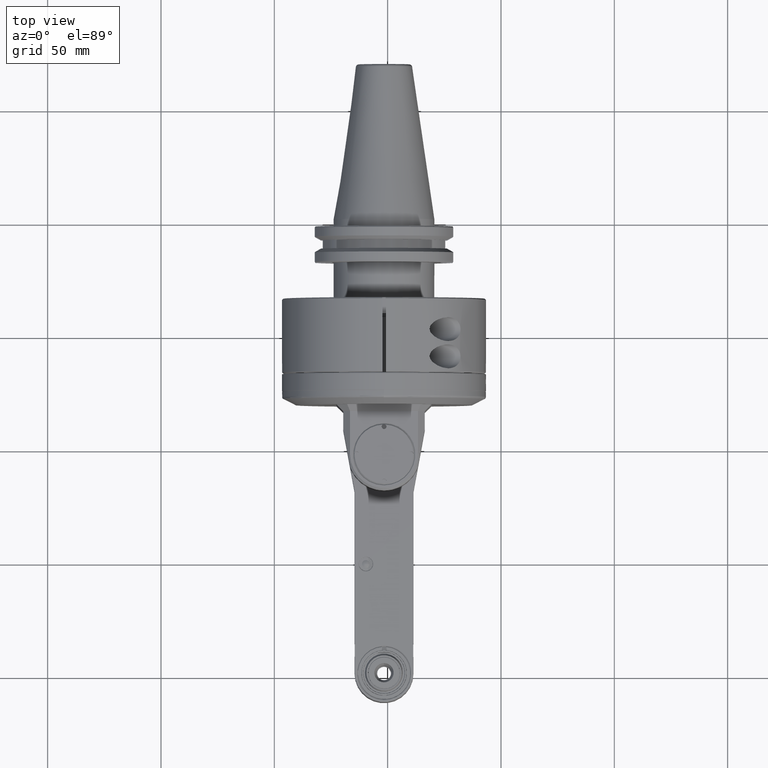
[diagram: clean part render]
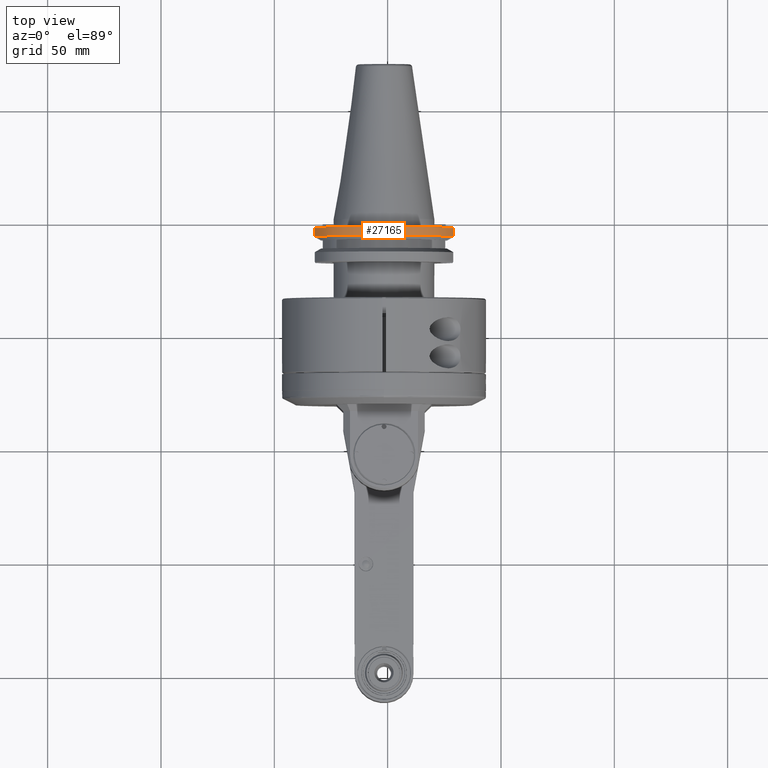
[diagram: same view with one face highlighted and labeled with its STEP entity id]
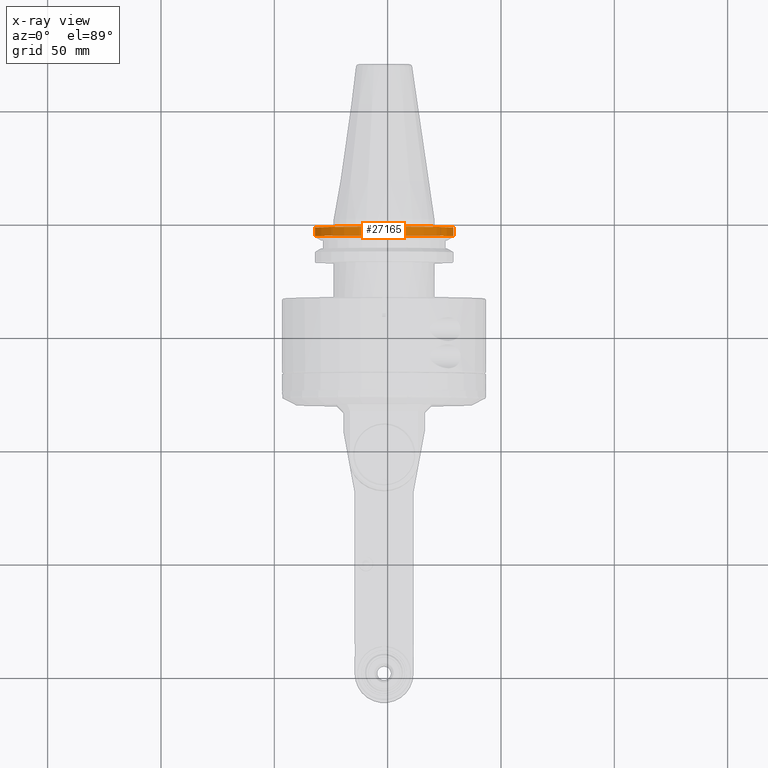
[diagram: x-ray of the same camera — body ghosted, the highlighted face saturated]
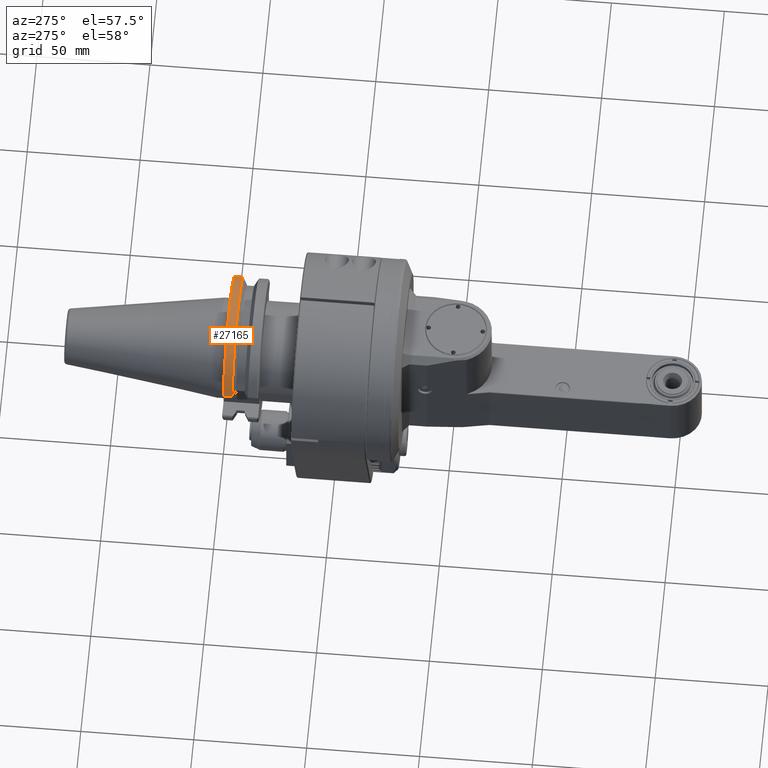
[diagram: same view with one face highlighted and labeled with its STEP entity id]
A machine part, top view. The second image highlights one B-rep face of the part: STEP entity #27165.
The next image is the same camera in x-ray: the body ghosted, the highlighted face saturated — about 0% of this face is hidden behind the body in this view.
A second angle (auxiliary view) of the same face is appended — the face is thin or edge-on in the first view.
In plain terms, the highlighted cylindrical surface (partial cylindrical patch) has radius 31.75 mm, axis along (0, 1, 0).
Its self-contained STEP definition (entity closure, byte-faithful):
#3970=LINE('',#50026,#6349);
#3972=LINE('',#50049,#6351);
#6349=VECTOR('',#37546,0.152557782090866);
#6351=VECTOR('',#37560,0.152557782090866);
#7469=CIRCLE('',#29887,1.25);
#7470=CIRCLE('',#29889,1.25);
#8998=FACE_OUTER_BOUND('',#10707,.T.);
#10707=EDGE_LOOP('',(#25179,#25180,#25181,#25182));
#13514=VERTEX_POINT('',#50023);
#13515=VERTEX_POINT('',#50025);
#13519=VERTEX_POINT('',#50044);
#13520=VERTEX_POINT('',#50048);
#17415=EDGE_CURVE('',#13514,#13515,#3970,.T.);
#17421=EDGE_CURVE('',#13514,#13519,#7469,.T.);
#17422=EDGE_CURVE('',#13520,#13519,#3972,.T.);
#17423=EDGE_CURVE('',#13520,#13515,#7470,.T.);
#25179=ORIENTED_EDGE('',*,*,#17415,.F.);
#25180=ORIENTED_EDGE('',*,*,#17421,.T.);
#25181=ORIENTED_EDGE('',*,*,#17422,.F.);
#25182=ORIENTED_EDGE('',*,*,#17423,.T.);
#25670=CYLINDRICAL_SURFACE('',#29888,1.25);
#27165=ADVANCED_FACE('',(#8998),#25670,.T.);
#29887=AXIS2_PLACEMENT_3D('',#50046,#37556,#37557);
#29888=AXIS2_PLACEMENT_3D('',#50047,#37558,#37559);
#29889=AXIS2_PLACEMENT_3D('',#50050,#37561,#37562);
#37546=DIRECTION('',(-1.03602579531E-13,1.,9.6267883635E-14));
#37556=DIRECTION('center_axis',(0.,1.,0.));
#37557=DIRECTION('ref_axis',(-0.96184356316399,0.,0.273599999999997));
#37558=DIRECTION('center_axis',(0.,1.,0.));
#37559=DIRECTION('ref_axis',(1.,0.,0.));
#37560=DIRECTION('',(-5.8677567168E-14,-1.,-6.37201705965E-14));
#37561=DIRECTION('center_axis',(0.,-1.,0.));
#37562=DIRECTION('ref_axis',(0.96184356316399,0.,0.273599999999997));
#50023=CARTESIAN_POINT('',(-1.20230445395512,2.37893700787398,0.341999999999961));
#50025=CARTESIAN_POINT('',(-1.20230445395512,2.53149478996488,0.341999999999961));
#50026=CARTESIAN_POINT('',(-1.20230445395512,2.37893700787398,0.341999999999961));
#50044=CARTESIAN_POINT('',(1.20230445395512,2.37893700787394,0.341999999999961));
#50046=CARTESIAN_POINT('Origin',(0.,2.37893700787394,0.));
#50047=CARTESIAN_POINT('Origin',(0.,1.89389763779528,0.));
#50048=CARTESIAN_POINT('',(1.20230445395512,2.53149478996492,0.342));
#50049=CARTESIAN_POINT('',(1.20230445395512,2.53149478996488,0.341999999999961));
#50050=CARTESIAN_POINT('Origin',(-1.20933295167244E-14,2.53149478996492,
7.13340148105512E-15));